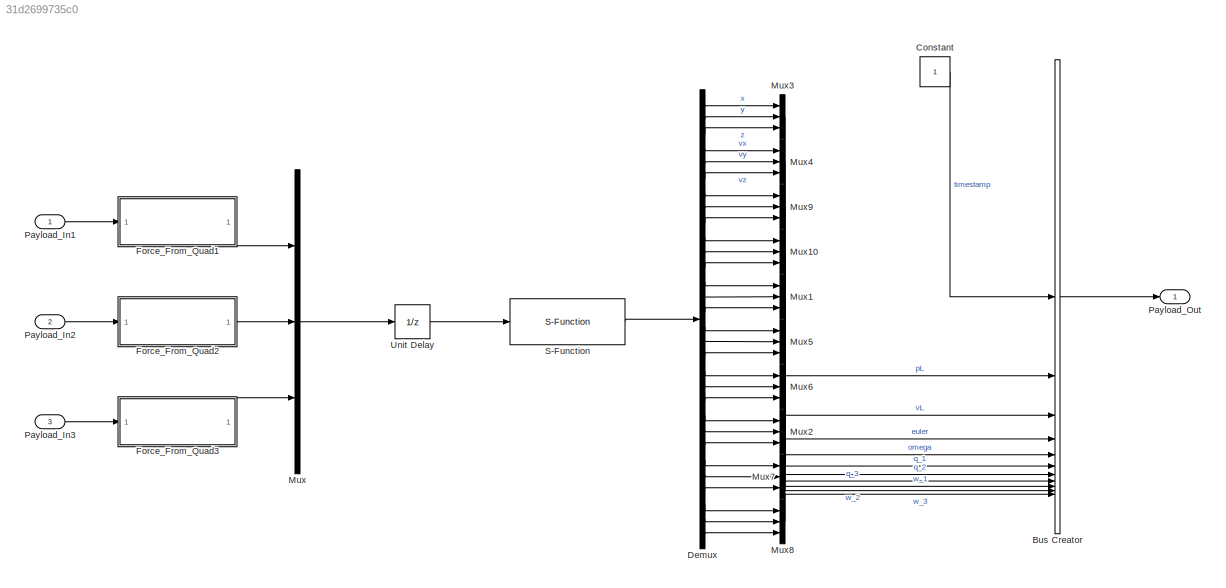
MODEL slx_31d2699735c0
KIND model
BLOCK [BusCreator] Bus Creator
  DisplayOption = bar
  InheritFromInputs = on
  Inputs = 11
  OutDataTypeStr = Bus: Payload_Out_Bus
BLOCK [Constant] Constant
  OutDataTypeStr = Inherit: Inherit via back propagation
BLOCK [Demux] Demux
  Outputs = 30
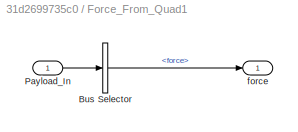
BLOCK [SubSystem] Force_From_Quad1
BLOCK [BusSelector] Force_From_Quad1/Bus Selector
  OutputSignals = force
BLOCK [Inport] Force_From_Quad1/Payload_In
BLOCK [Outport] Force_From_Quad1/force
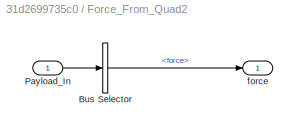
BLOCK [SubSystem] Force_From_Quad2
BLOCK [BusSelector] Force_From_Quad2/Bus Selector
  OutputSignals = force
BLOCK [Inport] Force_From_Quad2/Payload_In
BLOCK [Outport] Force_From_Quad2/force
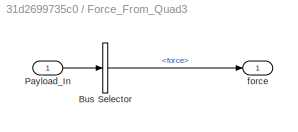
BLOCK [SubSystem] Force_From_Quad3
BLOCK [BusSelector] Force_From_Quad3/Bus Selector
  OutputSignals = force
BLOCK [Inport] Force_From_Quad3/Payload_In
BLOCK [Outport] Force_From_Quad3/force
BLOCK [Mux] Mux
  DisplayOption = bar
  Inputs = 3
BLOCK [Mux] Mux1
  DisplayOption = bar
  Inputs = 3
BLOCK [Mux] Mux10
  DisplayOption = bar
  Inputs = 3
BLOCK [Mux] Mux2
  DisplayOption = bar
  Inputs = 3
BLOCK [Mux] Mux3
  DisplayOption = bar
  Inputs = 3
BLOCK [Mux] Mux4
  DisplayOption = bar
  Inputs = 3
BLOCK [Mux] Mux5
  DisplayOption = bar
  Inputs = 3
BLOCK [Mux] Mux6
  DisplayOption = bar
  Inputs = 3
BLOCK [Mux] Mux7
  DisplayOption = bar
  Inputs = 3
BLOCK [Mux] Mux8
  DisplayOption = bar
  Inputs = 3
BLOCK [Mux] Mux9
  DisplayOption = bar
  Inputs = 3
BLOCK [Inport] Payload_In1
  OutDataTypeStr = Bus: Payload_In_Bus
BLOCK [Inport] Payload_In2
  OutDataTypeStr = Bus: Payload_In_Bus
  Port = 2
BLOCK [Inport] Payload_In3
  OutDataTypeStr = Bus: Payload_In_Bus
  Port = 3
BLOCK [Outport] Payload_Out
  OutDataTypeStr = Bus: Payload_Out_Bus
BLOCK [S-Function] S-Function
  EnableBusSupport = off
  FunctionName = payload_6dof_sfunc
  SFcnIsStateOwnerBlock = off
  SFunctionDeploymentMode = off
BLOCK [UnitDelay] Unit Delay
  HasFrameUpgradeWarning = on
  SampleTime = -1
LINE Bus Creator:1 -> Payload_Out:1
LINE Constant:1 -> Bus Creator:1
LINE Demux:1 -> Mux3:1
LINE Demux:10 -> Mux10:1
LINE Demux:11 -> Mux10:2
LINE Demux:12 -> Mux10:3
LINE Demux:13 -> Mux1:1
LINE Demux:14 -> Mux1:2
LINE Demux:15 -> Mux1:3
LINE Demux:16 -> Mux5:1
LINE Demux:17 -> Mux5:2
LINE Demux:18 -> Mux5:3
LINE Demux:19 -> Mux6:1
LINE Demux:2 -> Mux3:2
LINE Demux:20 -> Mux6:2
LINE Demux:21 -> Mux6:3
LINE Demux:22 -> Mux2:1
LINE Demux:23 -> Mux2:2
LINE Demux:24 -> Mux2:3
LINE Demux:25 -> Mux7:1
LINE Demux:26 -> Mux7:2
LINE Demux:27 -> Mux7:3
LINE Demux:28 -> Mux8:1
LINE Demux:29 -> Mux8:2
LINE Demux:3 -> Mux3:3
LINE Demux:30 -> Mux8:3
LINE Demux:4 -> Mux4:1
LINE Demux:5 -> Mux4:2
LINE Demux:6 -> Mux4:3
LINE Demux:7 -> Mux9:1
LINE Demux:8 -> Mux9:2
LINE Demux:9 -> Mux9:3
LINE Force_From_Quad1/Bus Selector:1 -> Force_From_Quad1/force:1
LINE Force_From_Quad1/Payload_In:1 -> Force_From_Quad1/Bus Selector:1
LINE Force_From_Quad1:1 -> Mux:1
LINE Force_From_Quad2/Bus Selector:1 -> Force_From_Quad2/force:1
LINE Force_From_Quad2/Payload_In:1 -> Force_From_Quad2/Bus Selector:1
LINE Force_From_Quad2:1 -> Mux:2
LINE Force_From_Quad3/Bus Selector:1 -> Force_From_Quad3/force:1
LINE Force_From_Quad3/Payload_In:1 -> Force_From_Quad3/Bus Selector:1
LINE Force_From_Quad3:1 -> Mux:3
LINE Mux10:1 -> Bus Creator:5
LINE Mux1:1 -> Bus Creator:6
LINE Mux2:1 -> Bus Creator:9
LINE Mux3:1 -> Bus Creator:2
LINE Mux4:1 -> Bus Creator:3
LINE Mux5:1 -> Bus Creator:7
LINE Mux6:1 -> Bus Creator:8
LINE Mux7:1 -> Bus Creator:10
LINE Mux8:1 -> Bus Creator:11
LINE Mux9:1 -> Bus Creator:4
LINE Mux:1 -> Unit Delay:1
LINE Payload_In1:1 -> Force_From_Quad1:1
LINE Payload_In2:1 -> Force_From_Quad2:1
LINE Payload_In3:1 -> Force_From_Quad3:1
LINE S-Function:1 -> Demux:1
LINE Unit Delay:1 -> S-Function:1
